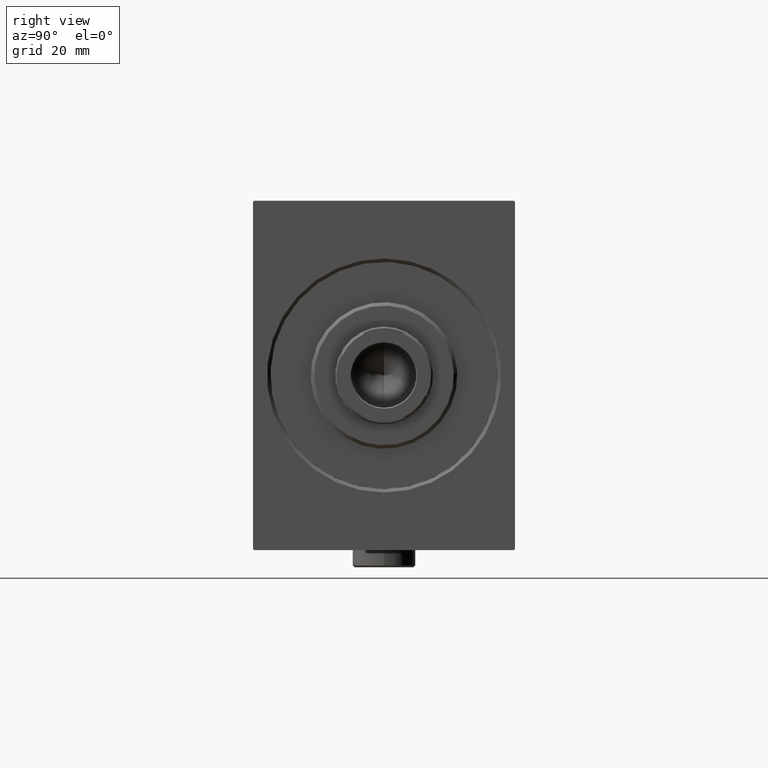
[diagram: clean part render]
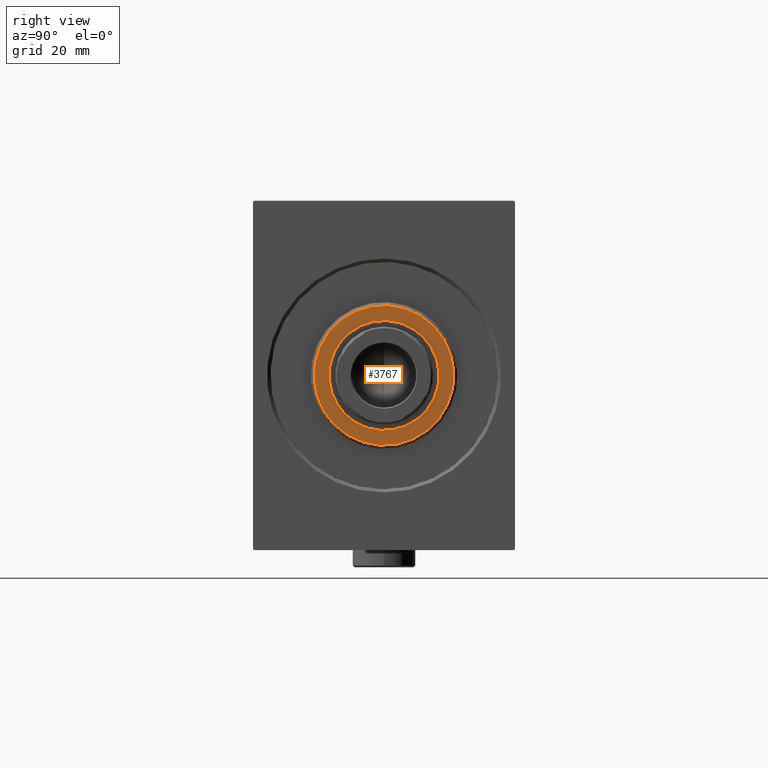
[diagram: same view with one face highlighted and labeled with its STEP entity id]
A machine part, right view. The second image highlights one B-rep face of the part: STEP entity #3767.
In plain terms, the highlighted planar face has unit normal (1, -0, -0).
Its self-contained STEP definition (entity closure, byte-faithful):
#1109 = EDGE_CURVE ( 'NONE', #34501, #22239, #31245, .T. ) ;
#1120 = DIRECTION ( 'NONE',  ( 0.000000000000000000, 0.000000000000000000, -1.000000000000000000 ) ) ;
#2354 = CARTESIAN_POINT ( 'NONE',  ( 3.000000000000000000, 2.510525938252073693E-15, -19.99999999999998934 ) ) ;
#3767 = ADVANCED_FACE ( 'NONE', ( #6946, #34083 ), #24211, .T. ) ;
#4262 = DIRECTION ( 'NONE',  ( 1.000000000000000000, -0.000000000000000000, 0.000000000000000000 ) ) ;
#5265 = DIRECTION ( 'NONE',  ( 0.000000000000000000, 0.000000000000000000, -1.000000000000000000 ) ) ;
#6910 = ORIENTED_EDGE ( 'NONE', *, *, #36433, .F. ) ;
#6946 = FACE_OUTER_BOUND ( 'NONE', #36864, .T. ) ;
#7178 = DIRECTION ( 'NONE',  ( 1.000000000000000000, -0.000000000000000000, 0.000000000000000000 ) ) ;
#8908 = DIRECTION ( 'NONE',  ( 1.000000000000000000, 0.000000000000000000, 0.000000000000000000 ) ) ;
#9163 = VERTEX_POINT ( 'NONE', #16185 ) ;
#9262 = ORIENTED_EDGE ( 'NONE', *, *, #26985, .F. ) ;
#10460 = AXIS2_PLACEMENT_3D ( 'NONE', #42873, #43971, #37018 ) ;
#12442 = CARTESIAN_POINT ( 'NONE',  ( 3.000000000000000000, 0.000000000000000000, 0.000000000000000000 ) ) ;
#15545 = AXIS2_PLACEMENT_3D ( 'NONE', #20612, #7178, #31419 ) ;
#16185 = CARTESIAN_POINT ( 'NONE',  ( 3.000000000000000000, 0.000000000000000000, -15.75000000000000000 ) ) ;
#18169 = CIRCLE ( 'NONE', #43186, 15.75000000000000000 ) ;
#18888 = ORIENTED_EDGE ( 'NONE', *, *, #1109, .T. ) ;
#19780 = VERTEX_POINT ( 'NONE', #29253 ) ;
#20612 = CARTESIAN_POINT ( 'NONE',  ( 3.000000000000000000, 0.000000000000000000, 0.000000000000000000 ) ) ;
#22239 = VERTEX_POINT ( 'NONE', #22434 ) ;
#22434 = CARTESIAN_POINT ( 'NONE',  ( 3.000000000000000000, 0.000000000000000000, 19.99999999999998934 ) ) ;
#22512 = DIRECTION ( 'NONE',  ( 1.000000000000000000, 0.000000000000000000, 0.000000000000000000 ) ) ;
#24211 = PLANE ( 'NONE',  #15545 ) ;
#26701 = EDGE_LOOP ( 'NONE', ( #9262, #6910 ) ) ;
#26985 = EDGE_CURVE ( 'NONE', #9163, #19780, #28743, .T. ) ;
#28743 = CIRCLE ( 'NONE', #35896, 15.75000000000000000 ) ;
#29253 = CARTESIAN_POINT ( 'NONE',  ( 3.000000000000000000, 1.928818708657081344E-15, 15.75000000000000000 ) ) ;
#31245 = CIRCLE ( 'NONE', #10460, 19.99999999999998934 ) ;
#31419 = DIRECTION ( 'NONE',  ( 0.000000000000000000, 0.000000000000000000, -1.000000000000000000 ) ) ;
#31773 = AXIS2_PLACEMENT_3D ( 'NONE', #34535, #4262, #1120 ) ;
#34083 = FACE_BOUND ( 'NONE', #26701, .T. ) ;
#34501 = VERTEX_POINT ( 'NONE', #2354 ) ;
#34535 = CARTESIAN_POINT ( 'NONE',  ( 3.000000000000000000, 0.000000000000000000, 0.000000000000000000 ) ) ;
#34612 = CIRCLE ( 'NONE', #31773, 19.99999999999998934 ) ;
#35896 = AXIS2_PLACEMENT_3D ( 'NONE', #12442, #22512, #5265 ) ;
#36433 = EDGE_CURVE ( 'NONE', #19780, #9163, #18169, .T. ) ;
#36700 = EDGE_CURVE ( 'NONE', #22239, #34501, #34612, .T. ) ;
#36864 = EDGE_LOOP ( 'NONE', ( #36897, #18888 ) ) ;
#36897 = ORIENTED_EDGE ( 'NONE', *, *, #36700, .T. ) ;
#37018 = DIRECTION ( 'NONE',  ( 0.000000000000000000, 0.000000000000000000, -1.000000000000000000 ) ) ;
#39834 = DIRECTION ( 'NONE',  ( 0.000000000000000000, 0.000000000000000000, -1.000000000000000000 ) ) ;
#42873 = CARTESIAN_POINT ( 'NONE',  ( 3.000000000000000000, 0.000000000000000000, 0.000000000000000000 ) ) ;
#43186 = AXIS2_PLACEMENT_3D ( 'NONE', #44089, #8908, #39834 ) ;
#43971 = DIRECTION ( 'NONE',  ( 1.000000000000000000, -0.000000000000000000, 0.000000000000000000 ) ) ;
#44089 = CARTESIAN_POINT ( 'NONE',  ( 3.000000000000000000, 0.000000000000000000, 0.000000000000000000 ) ) ;